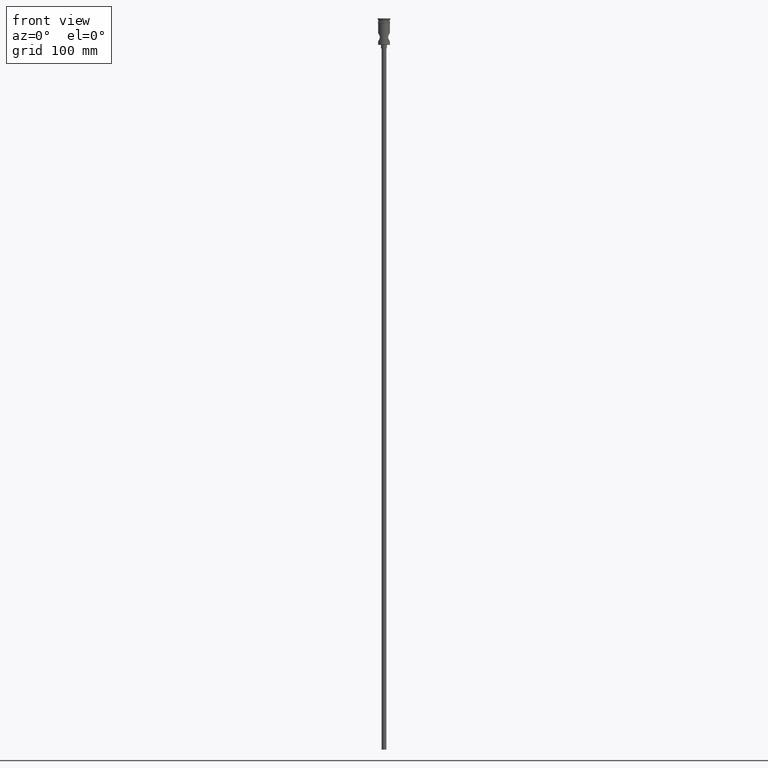
[diagram: clean part render]
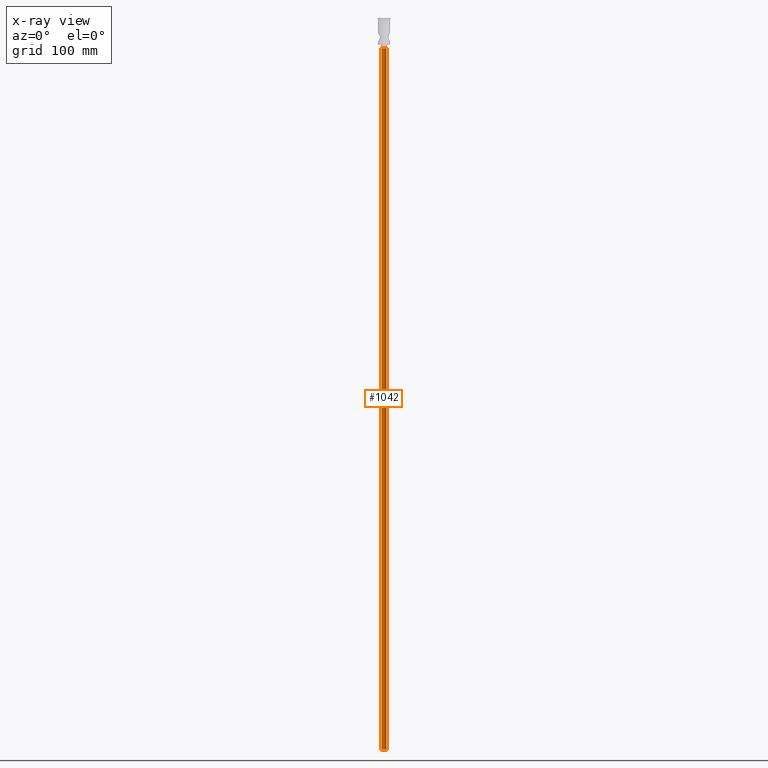
[diagram: x-ray — body ghosted, one internal face saturated and labeled with its STEP entity id]
A machine part, front view, then the same camera in x-ray: the body is ghosted and one INTERNAL B-rep face — a face not visible from any outside direction — is saturated and labeled: STEP entity #1042.
In plain terms, the highlighted cylindrical surface (edge-blend (fillet) strip) has radius 2 mm, axis along (-0, -0, 1).
Its self-contained STEP definition (entity closure, byte-faithful):
#82 = FACE_OUTER_BOUND ( 'NONE', #206, .T. ) ;
#85 = CARTESIAN_POINT ( 'NONE',  ( -2.000000000000000000, 2.449293598294706414E-16, -622.4999999999998863 ) ) ;
#107 = VERTEX_POINT ( 'NONE', #689 ) ;
#116 = CARTESIAN_POINT ( 'NONE',  ( 2.000000000000000000, 0.000000000000000000, -622.4999999999998863 ) ) ;
#149 = DIRECTION ( 'NONE',  ( -1.000000000000000000, 0.000000000000000000, 0.000000000000000000 ) ) ;
#181 = CARTESIAN_POINT ( 'NONE',  ( 0.000000000000000000, 0.000000000000000000, -622.4999999999998863 ) ) ;
#199 = AXIS2_PLACEMENT_3D ( 'NONE', #757, #972, #536 ) ;
#206 = EDGE_LOOP ( 'NONE', ( #486, #1428, #513, #342 ) ) ;
#255 = CARTESIAN_POINT ( 'NONE',  ( -2.000000000000000000, 2.449293598294706414E-16, -25.50000000000000000 ) ) ;
#298 = DIRECTION ( 'NONE',  ( 1.000000000000000000, 0.000000000000000000, 0.000000000000000000 ) ) ;
#330 = DIRECTION ( 'NONE',  ( -0.000000000000000000, -0.000000000000000000, 1.000000000000000000 ) ) ;
#342 = ORIENTED_EDGE ( 'NONE', *, *, #1063, .F. ) ;
#392 = VERTEX_POINT ( 'NONE', #255 ) ;
#479 = EDGE_CURVE ( 'NONE', #1232, #392, #617, .T. ) ;
#486 = ORIENTED_EDGE ( 'NONE', *, *, #826, .F. ) ;
#504 = EDGE_CURVE ( 'NONE', #392, #107, #1411, .T. ) ;
#510 = CYLINDRICAL_SURFACE ( 'NONE', #1041, 2.000000000000000000 ) ;
#513 = ORIENTED_EDGE ( 'NONE', *, *, #504, .T. ) ;
#536 = DIRECTION ( 'NONE',  ( -1.000000000000000000, 0.000000000000000000, 0.000000000000000000 ) ) ;
#592 = CARTESIAN_POINT ( 'NONE',  ( 0.000000000000000000, 0.000000000000000000, -622.4999999999998863 ) ) ;
#604 = CARTESIAN_POINT ( 'NONE',  ( -2.000000000000000000, 2.449293598294706414E-16, -622.4999999999998863 ) ) ;
#617 = LINE ( 'NONE', #85, #1289 ) ;
#625 = DIRECTION ( 'NONE',  ( -0.000000000000000000, -0.000000000000000000, 1.000000000000000000 ) ) ;
#689 = CARTESIAN_POINT ( 'NONE',  ( 2.000000000000000000, 0.000000000000000000, -25.50000000000000000 ) ) ;
#757 = CARTESIAN_POINT ( 'NONE',  ( 0.000000000000000000, 0.000000000000000000, -25.50000000000000000 ) ) ;
#800 = AXIS2_PLACEMENT_3D ( 'NONE', #592, #1057, #149 ) ;
#818 = VECTOR ( 'NONE', #330, 1000.000000000000000 ) ;
#826 = EDGE_CURVE ( 'NONE', #1232, #1179, #1356, .T. ) ;
#860 = DIRECTION ( 'NONE',  ( -0.000000000000000000, -0.000000000000000000, 1.000000000000000000 ) ) ;
#972 = DIRECTION ( 'NONE',  ( 0.000000000000000000, 0.000000000000000000, -1.000000000000000000 ) ) ;
#1001 = CARTESIAN_POINT ( 'NONE',  ( 2.000000000000000000, 0.000000000000000000, -622.4999999999998863 ) ) ;
#1041 = AXIS2_PLACEMENT_3D ( 'NONE', #181, #860, #298 ) ;
#1042 = ADVANCED_FACE ( 'NONE', ( #82 ), #510, .T. ) ;
#1057 = DIRECTION ( 'NONE',  ( 0.000000000000000000, 0.000000000000000000, -1.000000000000000000 ) ) ;
#1063 = EDGE_CURVE ( 'NONE', #1179, #107, #1141, .T. ) ;
#1141 = LINE ( 'NONE', #116, #818 ) ;
#1179 = VERTEX_POINT ( 'NONE', #1001 ) ;
#1232 = VERTEX_POINT ( 'NONE', #604 ) ;
#1289 = VECTOR ( 'NONE', #625, 1000.000000000000000 ) ;
#1356 = CIRCLE ( 'NONE', #800, 2.000000000000000000 ) ;
#1411 = CIRCLE ( 'NONE', #199, 2.000000000000000000 ) ;
#1428 = ORIENTED_EDGE ( 'NONE', *, *, #479, .T. ) ;